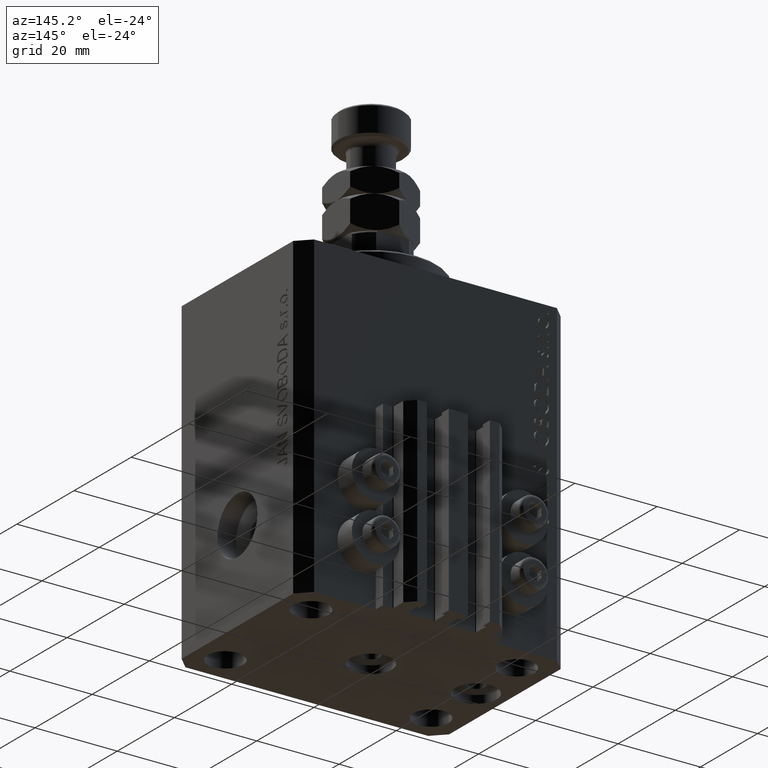
[diagram: clean part render]
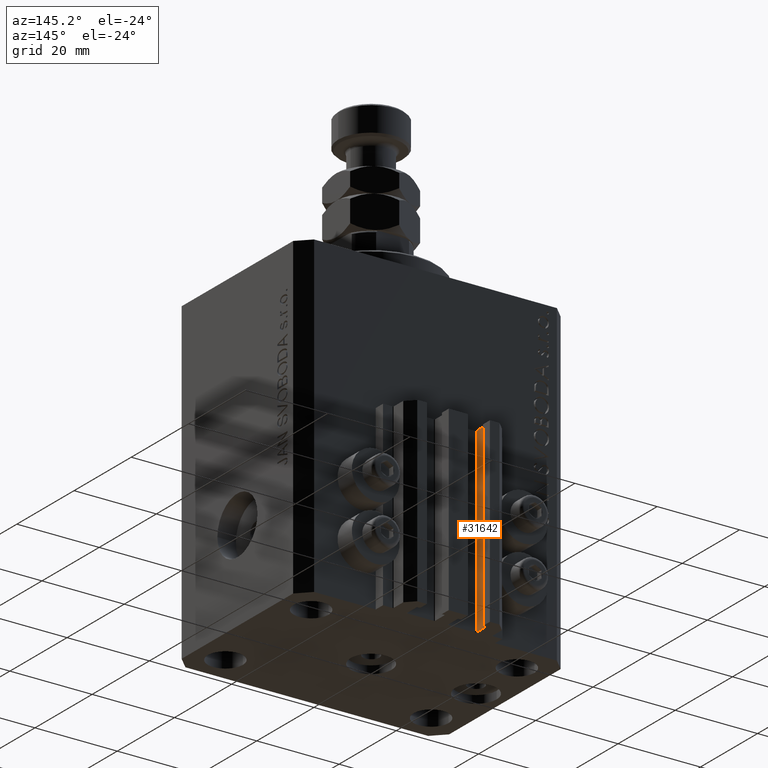
[diagram: same view with one face highlighted and labeled with its STEP entity id]
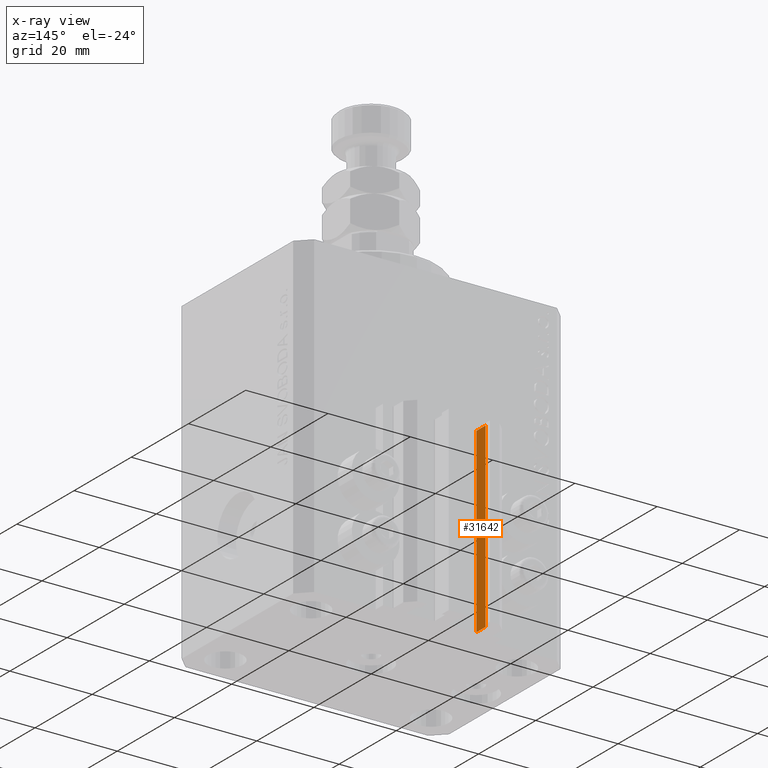
[diagram: x-ray of the same camera — body ghosted, the highlighted face saturated]
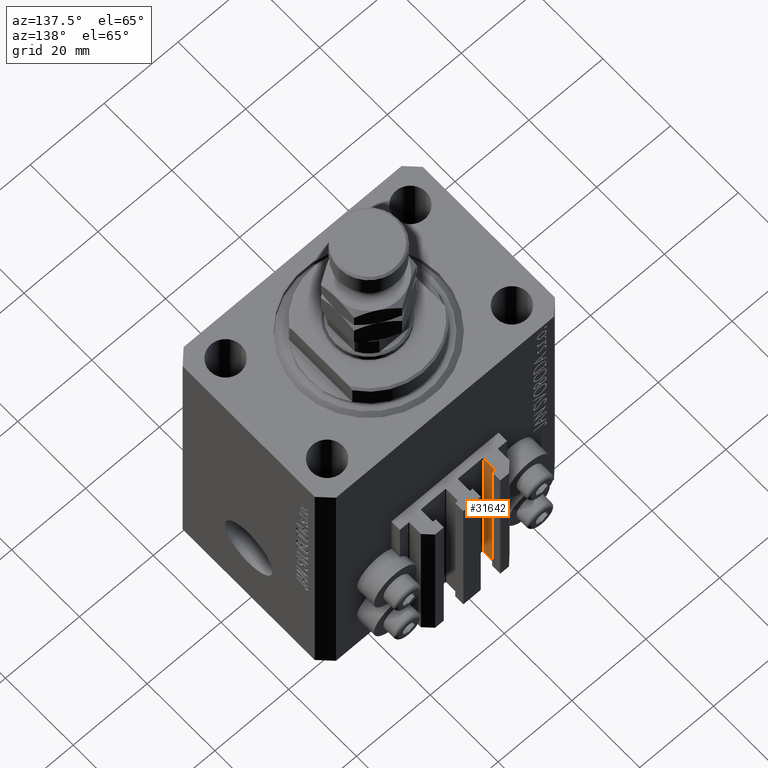
[diagram: same view with one face highlighted and labeled with its STEP entity id]
A machine part, auxiliary view. The second image highlights one B-rep face of the part: STEP entity #31642.
The next image is the same camera in x-ray: the body ghosted, the highlighted face saturated — about 0% of this face is hidden behind the body in this view.
A second angle (auxiliary view) of the same face is appended — the face is thin or edge-on in the first view.
In plain terms, the highlighted planar face has unit normal (1, -0, 0).
Its self-contained STEP definition (entity closure, byte-faithful):
#600 = VECTOR ( 'NONE', #7109, 1000.000000000000000 ) ;
#4304 = AXIS2_PLACEMENT_3D ( 'NONE', #13366, #4940, #38963 ) ;
#4649 = CARTESIAN_POINT ( 'NONE',  ( -8.400000000000000355, 24.69999999999949480, -33.00000000000000000 ) ) ;
#4940 = DIRECTION ( 'NONE',  ( 1.000000000000000000, -1.084202172485506406E-15, 0.000000000000000000 ) ) ;
#5182 = PLANE ( 'NONE',  #4304 ) ;
#5903 = FACE_OUTER_BOUND ( 'NONE', #15712, .T. ) ;
#7109 = DIRECTION ( 'NONE',  ( 0.000000000000000000, 0.000000000000000000, 1.000000000000000000 ) ) ;
#8411 = EDGE_CURVE ( 'NONE', #20258, #29050, #18058, .T. ) ;
#13366 = CARTESIAN_POINT ( 'NONE',  ( -8.400000000000000355, 24.69999999999949480, -77.00000000000000000 ) ) ;
#15651 = VECTOR ( 'NONE', #22037, 1000.000000000000000 ) ;
#15712 = EDGE_LOOP ( 'NONE', ( #25839, #18295, #41669, #27246 ) ) ;
#16290 = LINE ( 'NONE', #4649, #29475 ) ;
#18058 = LINE ( 'NONE', #29492, #15651 ) ;
#18295 = ORIENTED_EDGE ( 'NONE', *, *, #8411, .F. ) ;
#19538 = DIRECTION ( 'NONE',  ( 1.084202172485506406E-15, 1.000000000000000000, 0.000000000000000000 ) ) ;
#20258 = VERTEX_POINT ( 'NONE', #25167 ) ;
#20567 = DIRECTION ( 'NONE',  ( 1.084202172485506406E-15, 1.000000000000000000, 0.000000000000000000 ) ) ;
#22037 = DIRECTION ( 'NONE',  ( 0.000000000000000000, 0.000000000000000000, 1.000000000000000000 ) ) ;
#22984 = CARTESIAN_POINT ( 'NONE',  ( -8.399999999999996803, 27.89999999999948699, -77.00000000000000000 ) ) ;
#23819 = LINE ( 'NONE', #42466, #42396 ) ;
#25167 = CARTESIAN_POINT ( 'NONE',  ( -8.399999999999998579, 24.69999999999949480, -77.00000000000000000 ) ) ;
#25792 = EDGE_CURVE ( 'NONE', #29050, #35232, #16290, .T. ) ;
#25839 = ORIENTED_EDGE ( 'NONE', *, *, #25792, .F. ) ;
#25993 = LINE ( 'NONE', #36428, #600 ) ;
#27246 = ORIENTED_EDGE ( 'NONE', *, *, #47991, .T. ) ;
#29050 = VERTEX_POINT ( 'NONE', #38342 ) ;
#29475 = VECTOR ( 'NONE', #19538, 1000.000000000000000 ) ;
#29492 = CARTESIAN_POINT ( 'NONE',  ( -8.399999999999998579, 24.69999999999949480, -77.00000000000000000 ) ) ;
#29557 = VERTEX_POINT ( 'NONE', #22984 ) ;
#31642 = ADVANCED_FACE ( 'NONE', ( #5903 ), #5182, .T. ) ;
#35232 = VERTEX_POINT ( 'NONE', #42380 ) ;
#36428 = CARTESIAN_POINT ( 'NONE',  ( -8.399999999999996803, 27.89999999999948699, -77.00000000000000000 ) ) ;
#36900 = EDGE_CURVE ( 'NONE', #20258, #29557, #23819, .T. ) ;
#38342 = CARTESIAN_POINT ( 'NONE',  ( -8.399999999999998579, 24.69999999999949480, -33.00000000000000000 ) ) ;
#38963 = DIRECTION ( 'NONE',  ( 1.084202172485506406E-15, 1.000000000000000000, 0.000000000000000000 ) ) ;
#41669 = ORIENTED_EDGE ( 'NONE', *, *, #36900, .T. ) ;
#42380 = CARTESIAN_POINT ( 'NONE',  ( -8.399999999999996803, 27.89999999999948699, -33.00000000000000000 ) ) ;
#42396 = VECTOR ( 'NONE', #20567, 1000.000000000000000 ) ;
#42466 = CARTESIAN_POINT ( 'NONE',  ( -8.400000000000000355, 24.69999999999949480, -77.00000000000000000 ) ) ;
#47991 = EDGE_CURVE ( 'NONE', #29557, #35232, #25993, .T. ) ;